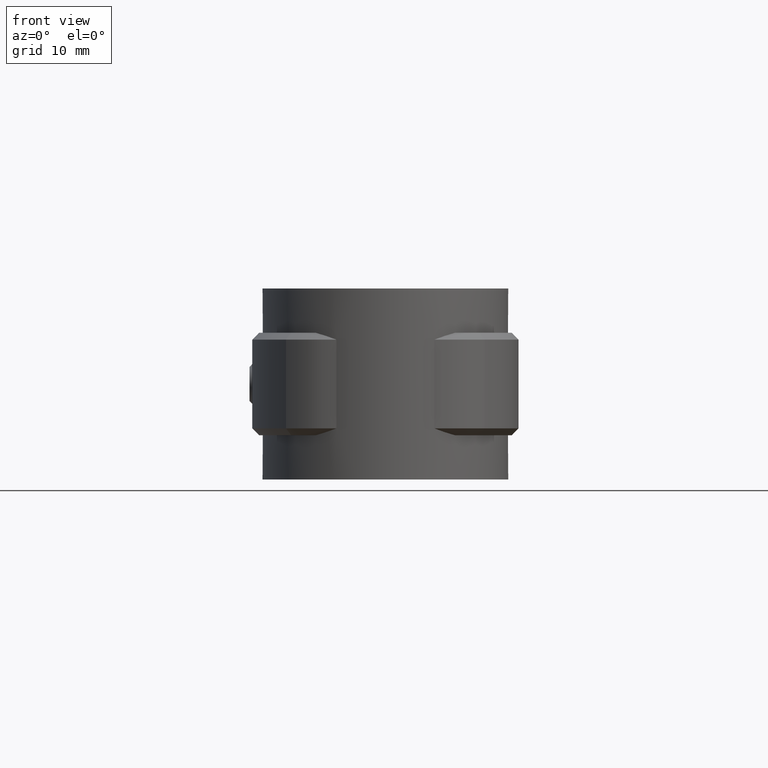
[diagram: clean part render]
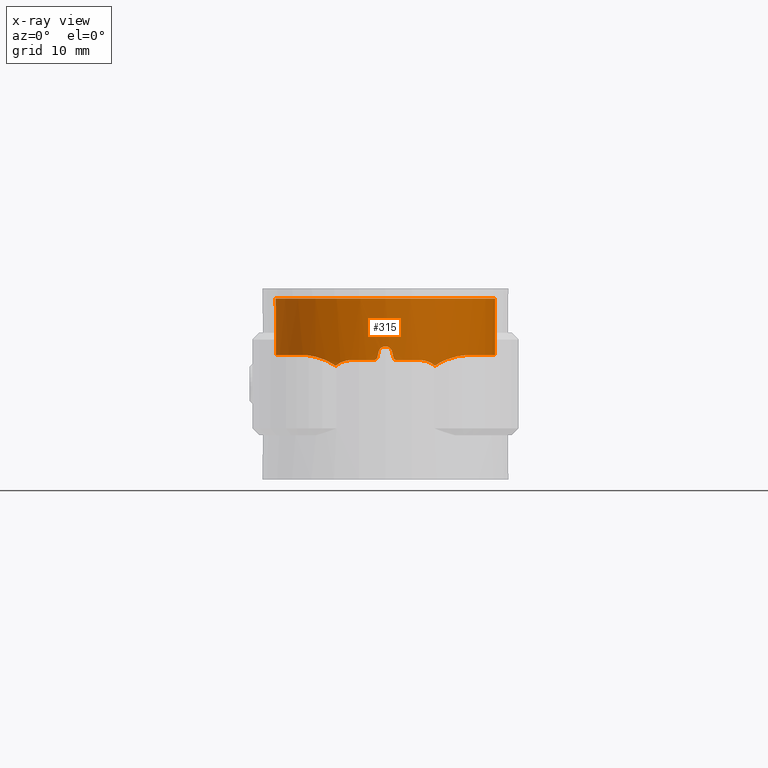
[diagram: x-ray — body ghosted, one internal face saturated and labeled with its STEP entity id]
A machine part, front view, then the same camera in x-ray: the body is ghosted and one INTERNAL B-rep face — a face not visible from any outside direction — is saturated and labeled: STEP entity #315.
In plain terms, the highlighted cylindrical surface (partial cylindrical patch) has radius 16.09 mm, axis along (0, 0, 1).
Its self-contained STEP definition (entity closure, byte-faithful):
#315 = ADVANCED_FACE( '', ( #522 ), #523, .T. );
#522 = FACE_OUTER_BOUND( '', #964, .T. );
#523 = CYLINDRICAL_SURFACE( '', #965, 16.0900000000000 );
#964 = EDGE_LOOP( '', ( #1846, #1847, #1848, #1849, #1850, #1851, #1852, #1853, #1854, #1855, #1856, #1857, #1858, #1859, #1860, #1861 ) );
#965 = AXIS2_PLACEMENT_3D( '', #1862, #1863, #1864 );
#1846 = ORIENTED_EDGE( '', *, *, #4630, .F. );
#1847 = ORIENTED_EDGE( '', *, *, #4631, .F. );
#1848 = ORIENTED_EDGE( '', *, *, #4632, .F. );
#1849 = ORIENTED_EDGE( '', *, *, #4633, .F. );
#1850 = ORIENTED_EDGE( '', *, *, #4634, .F. );
#1851 = ORIENTED_EDGE( '', *, *, #4635, .T. );
#1852 = ORIENTED_EDGE( '', *, *, #4636, .F. );
#1853 = ORIENTED_EDGE( '', *, *, #4637, .F. );
#1854 = ORIENTED_EDGE( '', *, *, #4638, .F. );
#1855 = ORIENTED_EDGE( '', *, *, #4639, .F. );
#1856 = ORIENTED_EDGE( '', *, *, #4640, .F. );
#1857 = ORIENTED_EDGE( '', *, *, #4641, .F. );
#1858 = ORIENTED_EDGE( '', *, *, #4642, .F. );
#1859 = ORIENTED_EDGE( '', *, *, #4643, .F. );
#1860 = ORIENTED_EDGE( '', *, *, #4644, .F. );
#1861 = ORIENTED_EDGE( '', *, *, #4645, .F. );
#1862 = CARTESIAN_POINT( '', ( 0.000000000000000, 0.000000000000000, 0.000000000000000 ) );
#1863 = DIRECTION( '', ( 0.000000000000000, 0.000000000000000, 1.00000000000000 ) );
#1864 = DIRECTION( '', ( 1.00000000000000, -6.12303176911189E-017, 0.000000000000000 ) );
#4630 = EDGE_CURVE( '', #5201, #5202, #5203, .T. );
#4631 = EDGE_CURVE( '', #5204, #5201, #5205, .T. );
#4632 = EDGE_CURVE( '', #5206, #5204, #5207, .T. );
#4633 = EDGE_CURVE( '', #5208, #5206, #5209, .T. );
#4634 = EDGE_CURVE( '', #5210, #5208, #5211, .F. );
#4635 = EDGE_CURVE( '', #5210, #5212, #5213, .T. );
#4636 = EDGE_CURVE( '', #5214, #5212, #5215, .T. );
#4637 = EDGE_CURVE( '', #5216, #5214, #5217, .T. );
#4638 = EDGE_CURVE( '', #5218, #5216, #5219, .T. );
#4639 = EDGE_CURVE( '', #5220, #5218, #5221, .T. );
#4640 = EDGE_CURVE( '', #5222, #5220, #5223, .T. );
#4641 = EDGE_CURVE( '', #5224, #5222, #5225, .T. );
#4642 = EDGE_CURVE( '', #5226, #5224, #5227, .T. );
#4643 = EDGE_CURVE( '', #5228, #5226, #5229, .T. );
#4644 = EDGE_CURVE( '', #5230, #5228, #5231, .T. );
#4645 = EDGE_CURVE( '', #5202, #5230, #5232, .T. );
#5201 = VERTEX_POINT( '', #6155 );
#5202 = VERTEX_POINT( '', #6156 );
#5203 = B_SPLINE_CURVE_WITH_KNOTS( '', 3, ( #6157, #6158, #6159, #6160, #6161, #6162, #6163, #6164, #6165, #6166 ), .UNSPECIFIED., .F., .F., ( 4, 2, 2, 2, 4 ), ( 0.00883853976691618, 0.00949434330834330, 0.0101501468497704, 0.0108059503911976, 0.0114617539326247 ), .UNSPECIFIED. );
#5204 = VERTEX_POINT( '', #6167 );
#5205 = B_SPLINE_CURVE_WITH_KNOTS( '', 3, ( #6168, #6169, #6170, #6171, #6172, #6173, #6174, #6175, #6176, #6177, #6178, #6179 ), .UNSPECIFIED., .F., .F., ( 4, 2, 2, 2, 2, 4 ), ( 4.66016712128000E-005, 0.00322408802680564, 0.00401845961570385, 0.00481283120460207, 0.00560720279350028, 0.00640157438239849 ), .UNSPECIFIED. );
#5206 = VERTEX_POINT( '', #6180 );
#5207 = B_SPLINE_CURVE_WITH_KNOTS( '', 3, ( #6181, #6182, #6183, #6184, #6185, #6186, #6187, #6188, #6189, #6190, #6191, #6192, #6193, #6194, #6195, #6196, #6197, #6198, #6199, #6200, #6201, #6202, #6203, #6204, #6205, #6206, #6207, #6208, #6209, #6210, #6211, #6212, #6213, #6214 ), .UNSPECIFIED., .F., .F., ( 4, 2, 2, 2, 2, 2, 2, 2, 2, 2, 2, 2, 2, 2, 2, 2, 4 ), ( 0.000000000000000, 0.00382526138376946, 0.00478157672971182, 0.00573789207565418, 0.00765052276753891, 0.00956315345942364, 0.0105194688053660, 0.0114757841513084, 0.0153010455350778, 0.0172136762269625, 0.0191263069188473, 0.0210389376107320, 0.0219952529566744, 0.0229515683026167, 0.0267768296863862, 0.0286894603782709, 0.0306020910701556 ), .UNSPECIFIED. );
#5208 = VERTEX_POINT( '', #6215 );
#5209 = LINE( '', #6216, #6217 );
#5210 = VERTEX_POINT( '', #6218 );
#5211 = CIRCLE( '', #6219, 16.0900000000000 );
#5212 = VERTEX_POINT( '', #6220 );
#5213 = LINE( '', #6221, #6222 );
#5214 = VERTEX_POINT( '', #6223 );
#5215 = B_SPLINE_CURVE_WITH_KNOTS( '', 3, ( #6224, #6225, #6226, #6227, #6228, #6229, #6230, #6231, #6232, #6233, #6234, #6235, #6236, #6237, #6238, #6239, #6240, #6241, #6242, #6243, #6244, #6245, #6246, #6247, #6248, #6249, #6250, #6251, #6252, #6253, #6254, #6255 ), .UNSPECIFIED., .F., .F., ( 4, 2, 2, 2, 2, 2, 2, 2, 2, 2, 2, 2, 2, 2, 2, 4 ), ( 0.000186769053910505, 0.00401259568005771, 0.00496905233659452, 0.00592550899313132, 0.00783842230620493, 0.00975133561927853, 0.0116642489323521, 0.0154900755584994, 0.0164465322150362, 0.0174029888715730, 0.0193159021846466, 0.0212288154977202, 0.0221852721542570, 0.0231417288107938, 0.0269675554369410, 0.0307933820630882 ), .UNSPECIFIED. );
#5216 = VERTEX_POINT( '', #6256 );
#5217 = B_SPLINE_CURVE_WITH_KNOTS( '', 3, ( #6257, #6258, #6259, #6260, #6261, #6262, #6263, #6264, #6265, #6266 ), .UNSPECIFIED., .F., .F., ( 4, 2, 2, 2, 4 ), ( 0.0130632303967494, 0.0146516333893562, 0.0162400363819630, 0.0178284393745698, 0.0194168423671766 ), .UNSPECIFIED. );
#5218 = VERTEX_POINT( '', #6267 );
#5219 = B_SPLINE_CURVE_WITH_KNOTS( '', 3, ( #6268, #6269, #6270, #6271, #6272, #6273 ), .UNSPECIFIED., .F., .F., ( 4, 2, 4 ), ( 3.87895961444886E-018, 0.00131543048050511, 0.00263086096101022 ), .UNSPECIFIED. );
#5220 = VERTEX_POINT( '', #6274 );
#5221 = CIRCLE( '', #6275, 16.0900000000000 );
#5222 = VERTEX_POINT( '', #6276 );
#5223 = B_SPLINE_CURVE_WITH_KNOTS( '', 3, ( #6277, #6278, #6279, #6280, #6281, #6282 ), .UNSPECIFIED., .F., .F., ( 4, 2, 4 ), ( 4.33680868994202E-019, 0.000336570482282133, 0.000673140964564266 ), .UNSPECIFIED. );
#5224 = VERTEX_POINT( '', #6283 );
#5225 = ELLIPSE( '', #6284, 73.2989636718306, 16.0900000000000 );
#5226 = VERTEX_POINT( '', #6285 );
#5227 = B_SPLINE_CURVE_WITH_KNOTS( '', 3, ( #6286, #6287, #6288, #6289, #6290, #6291, #6292, #6293, #6294, #6295 ), .UNSPECIFIED., .F., .F., ( 4, 2, 2, 2, 4 ), ( 0.000000000000000, 0.000671730620044260, 0.00134346124008852, 0.00201519186013278, 0.00268692248017704 ), .UNSPECIFIED. );
#5228 = VERTEX_POINT( '', #6296 );
#5229 = ELLIPSE( '', #6297, 73.2989262803470, 16.0900000000000 );
#5230 = VERTEX_POINT( '', #6298 );
#5231 = B_SPLINE_CURVE_WITH_KNOTS( '', 3, ( #6299, #6300, #6301, #6302, #6303, #6304 ), .UNSPECIFIED., .F., .F., ( 4, 2, 4 ), ( 7.78514538903399E-018, 0.000336555369048906, 0.000673110738097805 ), .UNSPECIFIED. );
#5232 = CIRCLE( '', #6305, 16.0900000000000 );
#6155 = CARTESIAN_POINT( '', ( 7.27066833708935, -14.3535877721233, -9.83653133997418 ) );
#6156 = CARTESIAN_POINT( '', ( 5.00000000000000, -15.2934005374868, -9.00000000000000 ) );
#6157 = CARTESIAN_POINT( '', ( 7.27066833708936, -14.3535877721233, -9.83653133997418 ) );
#6158 = CARTESIAN_POINT( '', ( 7.11468088235959, -14.4326016790358, -9.70354844449133 ) );
#6159 = CARTESIAN_POINT( '', ( 6.94839559996088, -14.5136466362885, -9.58523795773057 ) );
#6160 = CARTESIAN_POINT( '', ( 6.59454451108110, -14.6778105583897, -9.37757930778334 ) );
#6161 = CARTESIAN_POINT( '', ( 6.40812202928373, -14.7603195342937, -9.28927341071569 ) );
#6162 = CARTESIAN_POINT( '', ( 6.02577706039922, -14.9204916646540, -9.14748537619145 ) );
#6163 = CARTESIAN_POINT( '', ( 5.82850841832603, -14.9987969442466, -9.09317185074277 ) );
#6164 = CARTESIAN_POINT( '', ( 5.42089376559044, -15.1508854836746, -9.01923102233204 ) );
#6165 = CARTESIAN_POINT( '', ( 5.21111735840752, -15.2243781647679, -8.99999999999997 ) );
#6166 = CARTESIAN_POINT( '', ( 5.00000000000000, -15.2934005374868, -8.99999999999997 ) );
#6167 = CARTESIAN_POINT( '', ( 12.0752994393720, -10.6336843779332, -8.24973772499106 ) );
#6168 = CARTESIAN_POINT( '', ( 12.0752994393721, -10.6336843779332, -8.24973772499104 ) );
#6169 = CARTESIAN_POINT( '', ( 11.3676872205011, -11.4372280158803, -8.27590849637934 ) );
#6170 = CARTESIAN_POINT( '', ( 10.5960571636290, -12.1529155952117, -8.39653295992699 ) );
#6171 = CARTESIAN_POINT( '', ( 9.56309287778547, -12.9422934565629, -8.70632705366435 ) );
#6172 = CARTESIAN_POINT( '', ( 9.35320643317209, -13.0946725831758, -8.77661155504772 ) );
#6173 = CARTESIAN_POINT( '', ( 8.93422234923590, -13.3840424258339, -8.93389442264753 ) );
#6174 = CARTESIAN_POINT( '', ( 8.72430758693699, -13.5216713639647, -9.02111344830313 ) );
#6175 = CARTESIAN_POINT( '', ( 8.30504285032371, -13.7831564817656, -9.21526225288991 ) );
#6176 = CARTESIAN_POINT( '', ( 8.09567908633570, -13.9070144839353, -9.32216013748151 ) );
#6177 = CARTESIAN_POINT( '', ( 7.67959962396099, -14.1410332487049, -9.56001370555437 ) );
#6178 = CARTESIAN_POINT( '', ( 7.47170541415106, -14.2517544232784, -9.69181140429984 ) );
#6179 = CARTESIAN_POINT( '', ( 7.27066833708935, -14.3535877721233, -9.83653133997417 ) );
#6180 = CARTESIAN_POINT( '', ( 5.97970268724985, 14.9375786448841, -8.25156578356559 ) );
#6181 = CARTESIAN_POINT( '', ( 5.97970268724985, 14.9375786448841, -8.25156578356559 ) );
#6182 = CARTESIAN_POINT( '', ( 7.18050547387399, 14.4568820192303, -8.25350219987823 ) );
#6183 = CARTESIAN_POINT( '', ( 8.29987161202147, 13.8431951883344, -8.25389829040346 ) );
#6184 = CARTESIAN_POINT( '', ( 9.60083818657829, 12.9156540669661, -8.25214396542247 ) );
#6185 = CARTESIAN_POINT( '', ( 9.85605266201049, 12.7220151359708, -8.25171924638518 ) );
#6186 = CARTESIAN_POINT( '', ( 10.3563435950208, 12.3181812999350, -8.25087317941542 ) );
#6187 = CARTESIAN_POINT( '', ( 10.6022202598489, 12.1072245214547, -8.25045088744087 ) );
#6188 = CARTESIAN_POINT( '', ( 11.3166753252090, 11.4558456601365, -8.24954812822931 ) );
#6189 = CARTESIAN_POINT( '', ( 11.7627432138569, 10.9969429517159, -8.24976104864156 ) );
#6190 = CARTESIAN_POINT( '', ( 12.5962888143308, 10.0313703104010, -8.25127554661885 ) );
#6191 = CARTESIAN_POINT( '', ( 12.9837623436285, 9.52469677703625, -8.25228402271894 ) );
#6192 = CARTESIAN_POINT( '', ( 13.5205286754012, 8.72845133229438, -8.25307799962964 ) );
#6193 = CARTESIAN_POINT( '', ( 13.6920241940315, 8.45698129331812, -8.25323293463433 ) );
#6194 = CARTESIAN_POINT( '', ( 14.0198345049474, 7.90166435501812, -8.25326623740130 ) );
#6195 = CARTESIAN_POINT( '', ( 14.1759529548510, 7.61798638523472, -8.25314336120227 ) );
#6196 = CARTESIAN_POINT( '', ( 14.9080974833175, 6.18780003944958, -8.25194833719442 ) );
#6197 = CARTESIAN_POINT( '', ( 15.3498494021492, 4.99164914601846, -8.24895859032316 ) );
#6198 = CARTESIAN_POINT( '', ( 15.7976695305431, 3.11982721799640, -8.25060726814773 ) );
#6199 = CARTESIAN_POINT( '', ( 15.9106798545290, 2.47979560799067, -8.25165939629464 ) );
#6200 = CARTESIAN_POINT( '', ( 16.0575415685640, 1.20601760541248, -8.25297087091601 ) );
#6201 = CARTESIAN_POINT( '', ( 16.0925800615113, 0.568772529279273, -8.25323430601314 ) );
#6202 = CARTESIAN_POINT( '', ( 16.0871255570230, -0.706418104801154, -8.25267164489872 ) );
#6203 = CARTESIAN_POINT( '', ( 16.0466352159797, -1.34436363801910, -8.25184491845092 ) );
#6204 = CARTESIAN_POINT( '', ( 15.9277477146231, -2.30182136053256, -8.25061447161764 ) );
#6205 = CARTESIAN_POINT( '', ( 15.8781754717456, -2.62209984160320, -8.25021661072282 ) );
#6206 = CARTESIAN_POINT( '', ( 15.7605048958343, -3.25551060807056, -8.24972809169689 ) );
#6207 = CARTESIAN_POINT( '', ( 15.6924246523377, -3.56906902614824, -8.24966631763209 ) );
#6208 = CARTESIAN_POINT( '', ( 15.3067434871994, -5.12144771919518, -8.25057836017610 ) );
#6209 = CARTESIAN_POINT( '', ( 14.8552286034273, -6.31468423616170, -8.25368184332010 ) );
#6210 = CARTESIAN_POINT( '', ( 13.9580882294293, -8.02970182790708, -8.25323897184126 ) );
#6211 = CARTESIAN_POINT( '', ( 13.6246180457724, -8.58314374422466, -8.25235669390435 ) );
#6212 = CARTESIAN_POINT( '', ( 12.8971606941717, -9.64177470468599, -8.25038022791526 ) );
#6213 = CARTESIAN_POINT( '', ( 12.5021416699676, -10.1489749013676, -8.24952348472620 ) );
#6214 = CARTESIAN_POINT( '', ( 12.0752992766544, -10.6336845627106, -8.24973777531011 ) );
#6215 = CARTESIAN_POINT( '', ( 5.97970268724986, 14.9375786448841, 0.000000000000000 ) );
#6216 = CARTESIAN_POINT( '', ( 5.97970268724985, 14.9375786448841, 0.000000000000000 ) );
#6217 = VECTOR( '', #8877, 1000.00000000000 );
#6218 = CARTESIAN_POINT( '', ( -5.97970268724987, 14.9375786448841, 0.000000000000000 ) );
#6219 = AXIS2_PLACEMENT_3D( '', #8878, #8879, #8880 );
#6220 = CARTESIAN_POINT( '', ( -5.97970268724986, 14.9375786448841, -8.25156578356559 ) );
#6221 = CARTESIAN_POINT( '', ( -5.97970268724986, 14.9375786448841, 0.000000000000000 ) );
#6222 = VECTOR( '', #8881, 1000.00000000000 );
#6223 = CARTESIAN_POINT( '', ( -12.0752994392954, -10.6336843780203, -8.24973772499387 ) );
#6224 = CARTESIAN_POINT( '', ( -12.0752992766544, -10.6336845627104, -8.24973777531000 ) );
#6225 = CARTESIAN_POINT( '', ( -12.9284618955380, -9.66485819834748, -8.24930945628962 ) );
#6226 = CARTESIAN_POINT( '', ( -13.6507783494505, -8.61288705624017, -8.25305525001528 ) );
#6227 = CARTESIAN_POINT( '', ( -14.3943769509658, -7.19669050712475, -8.25346196651496 ) );
#6228 = CARTESIAN_POINT( '', ( -14.5350243347660, -6.90832130956362, -8.25337985265656 ) );
#6229 = CARTESIAN_POINT( '', ( -14.7998434967650, -6.32111289249538, -8.25294153403403 ) );
#6230 = CARTESIAN_POINT( '', ( -14.9241312029666, -6.02178223728128, -8.25258457029921 ) );
#6231 = CARTESIAN_POINT( '', ( -15.2672321021205, -5.11991580461685, -8.25133393879110 ) );
#6232 = CARTESIAN_POINT( '', ( -15.4582051836619, -4.50982899136460, -8.25022888249409 ) );
#6233 = CARTESIAN_POINT( '', ( -15.7666054911190, -3.27243278295538, -8.24948236692772 ) );
#6234 = CARTESIAN_POINT( '', ( -15.8840300053952, -2.64512271590314, -8.25017535030161 ) );
#6235 = CARTESIAN_POINT( '', ( -16.0441254593218, -1.37299731974332, -8.25180614052843 ) );
#6236 = CARTESIAN_POINT( '', ( -16.0864802714570, -0.724469301782896, -8.25265640732406 ) );
#6237 = CARTESIAN_POINT( '', ( -16.0963985416827, 1.20019463426291, -8.25352722102710 ) );
#6238 = CARTESIAN_POINT( '', ( -15.9516064969119, 2.46703260385642, -8.25121238325534 ) );
#6239 = CARTESIAN_POINT( '', ( -15.5804140856136, 4.03014151762852, -8.24979833248211 ) );
#6240 = CARTESIAN_POINT( '', ( -15.4962075478899, 4.34276630603209, -8.24966087466260 ) );
#6241 = CARTESIAN_POINT( '', ( -15.3097799576601, 4.96011141045426, -8.24991170484006 ) );
#6242 = CARTESIAN_POINT( '', ( -15.2077228564156, 5.26457282488196, -8.25024760351951 ) );
#6243 = CARTESIAN_POINT( '', ( -14.8755959483698, 6.16559739238415, -8.25143051236089 ) );
#6244 = CARTESIAN_POINT( '', ( -14.6196602804780, 6.74984362764150, -8.25241075995679 ) );
#6245 = CARTESIAN_POINT( '', ( -14.0395325449838, 7.88583423821078, -8.25337419565592 ) );
#6246 = CARTESIAN_POINT( '', ( -13.7153453837679, 8.43758095083974, -8.25335565092940 ) );
#6247 = CARTESIAN_POINT( '', ( -13.1762447646382, 9.24004960629810, -8.25257369171478 ) );
#6248 = CARTESIAN_POINT( '', ( -12.9875535866865, 9.50341527307774, -8.25219764358065 ) );
#6249 = CARTESIAN_POINT( '', ( -12.5975800578835, 10.0146106616702, -8.25136763677477 ) );
#6250 = CARTESIAN_POINT( '', ( -12.3957039546946, 10.2633687854208, -8.25091328816404 ) );
#6251 = CARTESIAN_POINT( '', ( -11.3524921813337, 11.4735725474019, -8.24900707975935 ) );
#6252 = CARTESIAN_POINT( '', ( -10.4111145261217, 12.3356989375069, -8.25103653700167 ) );
#6253 = CARTESIAN_POINT( '', ( -8.30708213447799, 13.8402731318377, -8.25390309789517 ) );
#6254 = CARTESIAN_POINT( '', ( -7.18047874180030, 14.4568927204194, -8.25350215677005 ) );
#6255 = CARTESIAN_POINT( '', ( -5.97970268724985, 14.9375786448841, -8.25156578356559 ) );
#6256 = CARTESIAN_POINT( '', ( -7.27066833708941, -14.3535877721232, -9.83653133997413 ) );
#6257 = CARTESIAN_POINT( '', ( -7.27066833708936, -14.3535877721233, -9.83653133997417 ) );
#6258 = CARTESIAN_POINT( '', ( -7.66980083793615, -14.1514111398916, -9.54920906742465 ) );
#6259 = CARTESIAN_POINT( '', ( -8.09497458673786, -13.9141569228892, -9.31255946810993 ) );
#6260 = CARTESIAN_POINT( '', ( -8.93372100895401, -13.3910793205361, -8.92411948674560 ) );
#6261 = CARTESIAN_POINT( '', ( -9.35103166483375, -13.1039437067160, -8.77029891922618 ) );
#6262 = CARTESIAN_POINT( '', ( -10.1725972525750, -12.4769146427476, -8.52316594471433 ) );
#6263 = CARTESIAN_POINT( '', ( -10.5780401014406, -12.1355779886713, -8.43012500259657 ) );
#6264 = CARTESIAN_POINT( '', ( -11.3512985152492, -11.4155686465683, -8.30041542275444 ) );
#6265 = CARTESIAN_POINT( '', ( -11.7218002835019, -11.0351076294539, -8.26281175811827 ) );
#6266 = CARTESIAN_POINT( '', ( -12.0752994392952, -10.6336843780205, -8.24973772499389 ) );
#6267 = CARTESIAN_POINT( '', ( -5.00000000000005, -15.2934005374867, -9.00000000000000 ) );
#6268 = CARTESIAN_POINT( '', ( -5.00000000000005, -15.2934005374867, -8.99999999999997 ) );
#6269 = CARTESIAN_POINT( '', ( -5.42302685213826, -15.1550968125888, -8.99999999999997 ) );
#6270 = CARTESIAN_POINT( '', ( -5.82769790999977, -15.0034348304715, -9.07418868764558 ) );
#6271 = CARTESIAN_POINT( '', ( -6.60384651881436, -14.6783626743027, -9.36169738199762 ) );
#6272 = CARTESIAN_POINT( '', ( -6.95499605076939, -14.5134884557350, -9.56741345013325 ) );
#6273 = CARTESIAN_POINT( '', ( -7.27066833708941, -14.3535877721232, -9.83653133997413 ) );
#6274 = CARTESIAN_POINT( '', ( -1.65000000000003, -16.0051741633760, -9.00000000000000 ) );
#6275 = AXIS2_PLACEMENT_3D( '', #8882, #8883, #8884 );
#6276 = CARTESIAN_POINT( '', ( -1.16219512100914, -16.0479719123851, -8.60975609337373 ) );
#6277 = CARTESIAN_POINT( '', ( -1.16219512100915, -16.0479719123851, -8.60975609337372 ) );
#6278 = CARTESIAN_POINT( '', ( -1.18717415572043, -16.0461629291424, -8.72077402987360 ) );
#6279 = CARTESIAN_POINT( '', ( -1.24933708052125, -16.0416701521405, -8.81992892434561 ) );
#6280 = CARTESIAN_POINT( '', ( -1.42675870956230, -16.0268644467821, -8.96157189897338 ) );
#6281 = CARTESIAN_POINT( '', ( -1.53680578638620, -16.0168435429502, -8.99999999999994 ) );
#6282 = CARTESIAN_POINT( '', ( -1.65000000000003, -16.0051741633760, -8.99999999999994 ) );
#6283 = CARTESIAN_POINT( '', ( -0.975610000000025, -16.0603949244064, -7.78048800000004 ) );
#6284 = AXIS2_PLACEMENT_3D( '', #8885, #8886, #8887 );
#6285 = CARTESIAN_POINT( '', ( 0.975609757981813, -16.0603949391082, -7.78048781325256 ) );
#6286 = CARTESIAN_POINT( '', ( 0.975609757981816, -16.0603949391082, -7.78048781325256 ) );
#6287 = CARTESIAN_POINT( '', ( 0.925754360704220, -16.0634234706142, -7.55890835993988 ) );
#6288 = CARTESIAN_POINT( '', ( 0.801993756409708, -16.0709793514082, -7.36098173594529 ) );
#6289 = CARTESIAN_POINT( '', ( 0.447458259411136, -16.0847552796053, -7.07733026727309 ) );
#6290 = CARTESIAN_POINT( '', ( 0.227136479405867, -16.0900000248275, -6.99999961980643 ) );
#6291 = CARTESIAN_POINT( '', ( -0.227139996869687, -16.0899999751724, -7.00000037332922 ) );
#6292 = CARTESIAN_POINT( '', ( -0.447531592522920, -16.0847528103894, -7.07737603096165 ) );
#6293 = CARTESIAN_POINT( '', ( -0.801989314475959, -16.0709791436957, -7.36099077211950 ) );
#6294 = CARTESIAN_POINT( '', ( -0.925754630683115, -16.0634234549680, -7.55890847290776 ) );
#6295 = CARTESIAN_POINT( '', ( -0.975610000000025, -16.0603949244064, -7.78048800000004 ) );
#6296 = CARTESIAN_POINT( '', ( 1.16219499999999, -16.0479719211486, -8.60975599999999 ) );
#6297 = AXIS2_PLACEMENT_3D( '', #8888, #8889, #8890 );
#6298 = CARTESIAN_POINT( '', ( 1.64999999999995, -16.0051741633761, -9.00000000000000 ) );
#6299 = CARTESIAN_POINT( '', ( 1.64999999999995, -16.0051741633761, -8.99999999999995 ) );
#6300 = CARTESIAN_POINT( '', ( 1.53680573434202, -16.0168435483155, -9.00000000048577 ) );
#6301 = CARTESIAN_POINT( '', ( 1.42675685891321, -16.0268645621218, -8.96156781974292 ) );
#6302 = CARTESIAN_POINT( '', ( 1.24935296716543, -16.0416688655042, -8.81994428070039 ) );
#6303 = CARTESIAN_POINT( '', ( 1.18717405312006, -16.0461629367621, -8.72077401609191 ) );
#6304 = CARTESIAN_POINT( '', ( 1.16219499999999, -16.0479719211486, -8.60975599999999 ) );
#6305 = AXIS2_PLACEMENT_3D( '', #8891, #8892, #8893 );
#8877 = DIRECTION( '', ( 0.000000000000000, 0.000000000000000, -1.00000000000000 ) );
#8878 = CARTESIAN_POINT( '', ( 0.000000000000000, 0.000000000000000, 0.000000000000000 ) );
#8879 = DIRECTION( '', ( 0.000000000000000, 0.000000000000000, -1.00000000000000 ) );
#8880 = DIRECTION( '', ( -1.00000000000000, 0.000000000000000, 0.000000000000000 ) );
#8881 = DIRECTION( '', ( 0.000000000000000, 0.000000000000000, -1.00000000000000 ) );
#8882 = CARTESIAN_POINT( '', ( 0.000000000000000, 0.000000000000000, -9.00000000000000 ) );
#8883 = DIRECTION( '', ( 6.12303176911189E-017, -3.05720745347993E-016, -1.00000000000000 ) );
#8884 = DIRECTION( '', ( 0.000000000000000, 1.00000000000000, -3.05720745347993E-016 ) );
#8885 = CARTESIAN_POINT( '', ( 0.000000000000000, 0.000000000000000, -3.44443890776447 ) );
#8886 = DIRECTION( '', ( 0.975609806487711, -1.18038009681476E-016, -0.219511971165610 ) );
#8887 = DIRECTION( '', ( -0.219511971165610, 2.65585237103421E-017, -0.975609806487711 ) );
#8888 = CARTESIAN_POINT( '', ( 0.000000000000000, 0.000000000000000, -3.44444212055030 ) );
#8889 = DIRECTION( '', ( -0.975609781292647, -1.61807527429124E-017, -0.219512083143762 ) );
#8890 = DIRECTION( '', ( 0.219512083143762, 3.64066741594651E-018, -0.975609781292647 ) );
#8891 = CARTESIAN_POINT( '', ( 0.000000000000000, 0.000000000000000, -9.00000000000000 ) );
#8892 = DIRECTION( '', ( 6.12303176911189E-017, -3.05720745347993E-016, -1.00000000000000 ) );
#8893 = DIRECTION( '', ( 0.000000000000000, 1.00000000000000, -3.05720745347993E-016 ) );